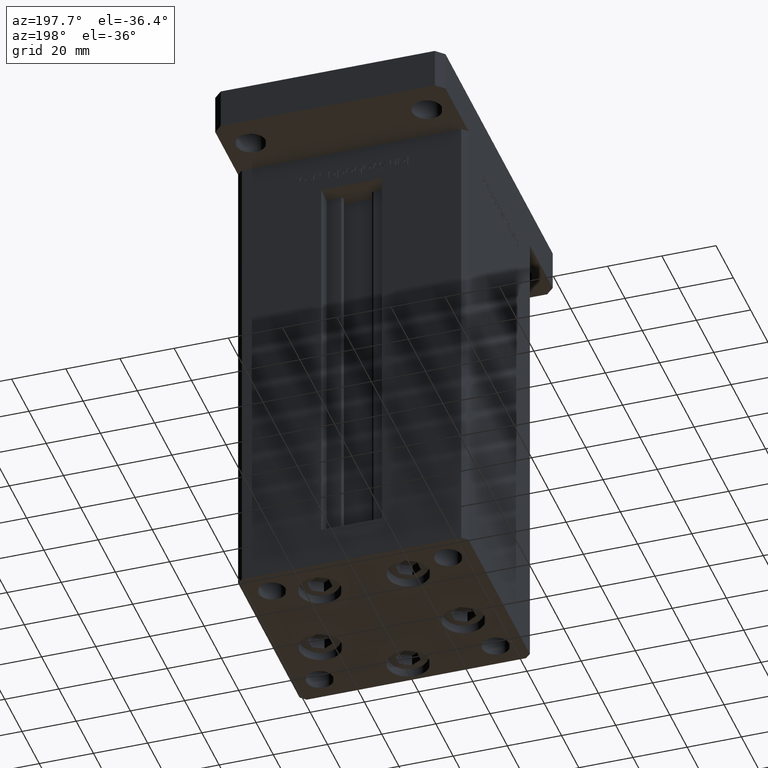
[diagram: clean part render]
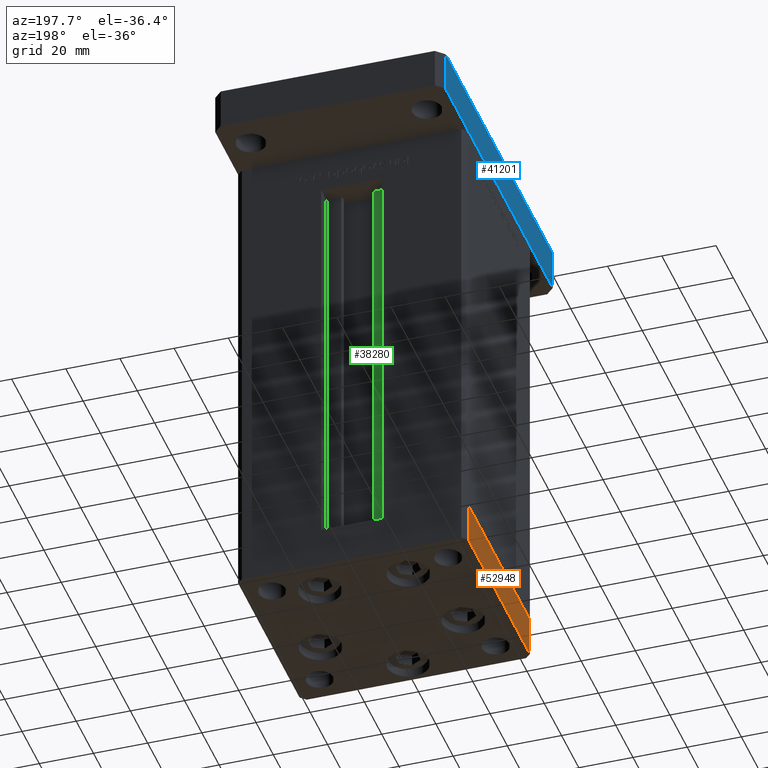
[diagram: same view with three faces highlighted in distinct colors, each labeled with its STEP entity id]
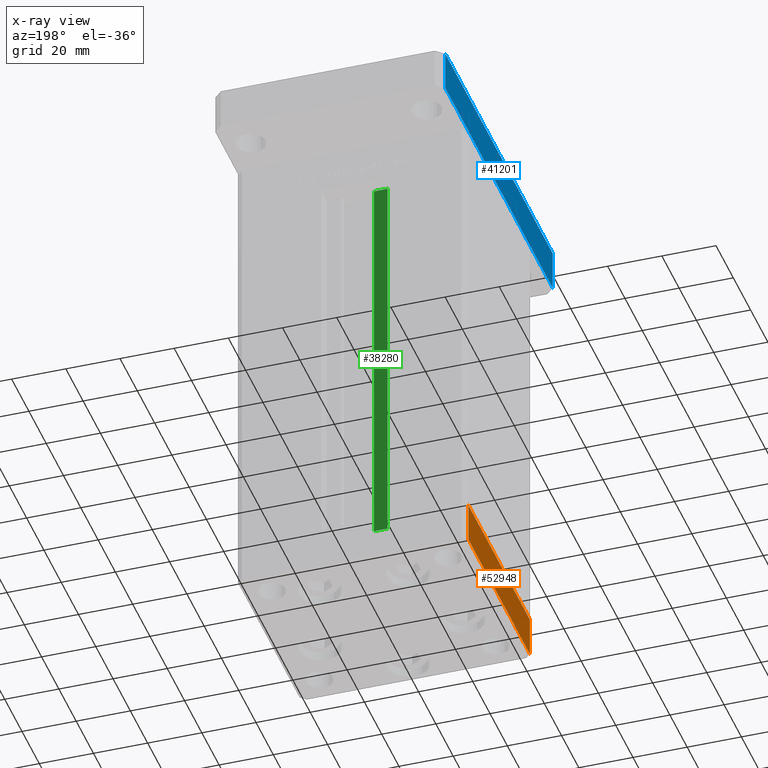
[diagram: x-ray of the same camera — body ghosted, the three highlighted faces saturated]
A machine part, auxiliary view with three faces highlighted in distinct colors.
The next image is the same camera in x-ray (body ghosted, the three faces saturated) — at least one of them is partly hidden behind the body in this view.
Their STEP definitions:

[orange] entity #52948 — the highlighted planar face has unit normal (-1, 0, 0).
#741 = VECTOR ( 'NONE', #9387, 1000.000000000000000 ) ;
#3441 = VERTEX_POINT ( 'NONE', #46771 ) ;
#3985 = AXIS2_PLACEMENT_3D ( 'NONE', #17470, #34008, #45936 ) ;
#4777 = EDGE_CURVE ( 'NONE', #44867, #19533, #8038, .T. ) ;
#5547 = LINE ( 'NONE', #39439, #51664 ) ;
#7518 = ORIENTED_EDGE ( 'NONE', *, *, #31306, .T. ) ;
#8002 = LINE ( 'NONE', #24568, #25892 ) ;
#8038 = LINE ( 'NONE', #41125, #741 ) ;
#9387 = DIRECTION ( 'NONE',  ( -1.172770800660376741E-15, 1.000000000000000000, 0.000000000000000000 ) ) ;
#10040 = EDGE_CURVE ( 'NONE', #33467, #44867, #8002, .T. ) ;
#12840 = PLANE ( 'NONE',  #3985 ) ;
#14798 = ORIENTED_EDGE ( 'NONE', *, *, #49967, .T. ) ;
#16931 = FACE_OUTER_BOUND ( 'NONE', #22324, .T. ) ;
#17470 = CARTESIAN_POINT ( 'NONE',  ( 42.50000000000000711, -35.50000000000000000, -15.00000000000000000 ) ) ;
#19533 = VERTEX_POINT ( 'NONE', #48091 ) ;
#22324 = EDGE_LOOP ( 'NONE', ( #23683, #27690, #7518, #14798 ) ) ;
#23683 = ORIENTED_EDGE ( 'NONE', *, *, #4777, .F. ) ;
#24568 = CARTESIAN_POINT ( 'NONE',  ( 42.50000000000000711, -35.50000000000000000, -15.00000000000000000 ) ) ;
#25892 = VECTOR ( 'NONE', #32967, 1000.000000000000000 ) ;
#27690 = ORIENTED_EDGE ( 'NONE', *, *, #10040, .F. ) ;
#31306 = EDGE_CURVE ( 'NONE', #33467, #3441, #49856, .T. ) ;
#32967 = DIRECTION ( 'NONE',  ( 0.000000000000000000, 0.000000000000000000, 1.000000000000000000 ) ) ;
#33467 = VERTEX_POINT ( 'NONE', #44484 ) ;
#33590 = DIRECTION ( 'NONE',  ( -1.172770800660376741E-15, 1.000000000000000000, 0.000000000000000000 ) ) ;
#34008 = DIRECTION ( 'NONE',  ( 1.000000000000000000, 1.172770800660376741E-15, -0.000000000000000000 ) ) ;
#39439 = CARTESIAN_POINT ( 'NONE',  ( 42.49999999999992895, 35.50000000000000000, -15.00000000000000000 ) ) ;
#41125 = CARTESIAN_POINT ( 'NONE',  ( 42.50000000000000711, -35.50000000000000000, 0.000000000000000000 ) ) ;
#44484 = CARTESIAN_POINT ( 'NONE',  ( 42.50000000000000711, -35.50000000000000000, -15.00000000000000000 ) ) ;
#44867 = VERTEX_POINT ( 'NONE', #49268 ) ;
#45936 = DIRECTION ( 'NONE',  ( -1.172770800660376741E-15, 1.000000000000000000, 0.000000000000000000 ) ) ;
#46598 = CARTESIAN_POINT ( 'NONE',  ( 42.50000000000000711, -35.50000000000000000, -15.00000000000000000 ) ) ;
#46771 = CARTESIAN_POINT ( 'NONE',  ( 42.49999999999992895, 35.50000000000000000, -15.00000000000000000 ) ) ;
#47310 = DIRECTION ( 'NONE',  ( 0.000000000000000000, 0.000000000000000000, 1.000000000000000000 ) ) ;
#48091 = CARTESIAN_POINT ( 'NONE',  ( 42.49999999999992895, 35.50000000000000000, 0.000000000000000000 ) ) ;
#49268 = CARTESIAN_POINT ( 'NONE',  ( 42.50000000000000711, -35.50000000000000000, 0.000000000000000000 ) ) ;
#49856 = LINE ( 'NONE', #46598, #52074 ) ;
#49967 = EDGE_CURVE ( 'NONE', #3441, #19533, #5547, .T. ) ;
#51664 = VECTOR ( 'NONE', #47310, 1000.000000000000000 ) ;
#52074 = VECTOR ( 'NONE', #33590, 1000.000000000000000 ) ;
#52948 = ADVANCED_FACE ( 'NONE', ( #16931 ), #12840, .T. ) ;

[blue] entity #41201 — the highlighted planar face has unit normal (1, 0, 0).
#212 = CARTESIAN_POINT ( 'NONE',  ( -42.50000000000002132, 62.00000000000000711, 15.00000000000000000 ) ) ;
#5025 = EDGE_CURVE ( 'NONE', #47644, #29393, #35678, .T. ) ;
#6117 = EDGE_CURVE ( 'NONE', #18788, #36698, #46958, .T. ) ;
#7469 = ORIENTED_EDGE ( 'NONE', *, *, #6117, .T. ) ;
#11046 = FACE_OUTER_BOUND ( 'NONE', #34061, .T. ) ;
#11125 = VECTOR ( 'NONE', #28348, 1000.000000000000000 ) ;
#11527 = VECTOR ( 'NONE', #19305, 1000.000000000000000 ) ;
#12273 = CARTESIAN_POINT ( 'NONE',  ( -42.49999999999999289, -62.00000000000001421, 15.00000000000000000 ) ) ;
#14971 = LINE ( 'NONE', #39911, #11527 ) ;
#18117 = DIRECTION ( 'NONE',  ( -2.238352872228137677E-16, 1.000000000000000000, 0.000000000000000000 ) ) ;
#18788 = VERTEX_POINT ( 'NONE', #45472 ) ;
#19305 = DIRECTION ( 'NONE',  ( -0.000000000000000000, -0.000000000000000000, -1.000000000000000000 ) ) ;
#22412 = VECTOR ( 'NONE', #30420, 1000.000000000000000 ) ;
#22943 = ORIENTED_EDGE ( 'NONE', *, *, #36679, .F. ) ;
#23007 = CARTESIAN_POINT ( 'NONE',  ( -42.50000000000002132, 62.00000000000000711, 15.00000000000000000 ) ) ;
#23279 = PLANE ( 'NONE',  #43735 ) ;
#28348 = DIRECTION ( 'NONE',  ( 2.238352872228137677E-16, -1.000000000000000000, 0.000000000000000000 ) ) ;
#29393 = VERTEX_POINT ( 'NONE', #12273 ) ;
#30420 = DIRECTION ( 'NONE',  ( 2.238352872228137677E-16, -1.000000000000000000, 0.000000000000000000 ) ) ;
#34061 = EDGE_LOOP ( 'NONE', ( #7469, #22943, #47456, #48614 ) ) ;
#34184 = EDGE_CURVE ( 'NONE', #47644, #18788, #38188, .T. ) ;
#35678 = LINE ( 'NONE', #44873, #11125 ) ;
#36679 = EDGE_CURVE ( 'NONE', #29393, #36698, #14971, .T. ) ;
#36698 = VERTEX_POINT ( 'NONE', #48844 ) ;
#38188 = LINE ( 'NONE', #212, #47852 ) ;
#38722 = DIRECTION ( 'NONE',  ( 1.000000000000000000, 2.238352872228137677E-16, -0.000000000000000000 ) ) ;
#39911 = CARTESIAN_POINT ( 'NONE',  ( -42.49999999999999289, -62.00000000000001421, 15.00000000000000000 ) ) ;
#41201 = ADVANCED_FACE ( 'NONE', ( #11046 ), #23279, .F. ) ;
#41440 = DIRECTION ( 'NONE',  ( -0.000000000000000000, -0.000000000000000000, -1.000000000000000000 ) ) ;
#43735 = AXIS2_PLACEMENT_3D ( 'NONE', #23007, #38722, #18117 ) ;
#44873 = CARTESIAN_POINT ( 'NONE',  ( -42.50000000000002132, 62.00000000000000711, 15.00000000000000000 ) ) ;
#45472 = CARTESIAN_POINT ( 'NONE',  ( -42.50000000000002132, 62.00000000000000711, 0.000000000000000000 ) ) ;
#46958 = LINE ( 'NONE', #47763, #22412 ) ;
#47289 = CARTESIAN_POINT ( 'NONE',  ( -42.50000000000002132, 62.00000000000000711, 15.00000000000000000 ) ) ;
#47456 = ORIENTED_EDGE ( 'NONE', *, *, #5025, .F. ) ;
#47644 = VERTEX_POINT ( 'NONE', #47289 ) ;
#47763 = CARTESIAN_POINT ( 'NONE',  ( -42.50000000000002132, 62.00000000000000711, 0.000000000000000000 ) ) ;
#47852 = VECTOR ( 'NONE', #41440, 1000.000000000000000 ) ;
#48614 = ORIENTED_EDGE ( 'NONE', *, *, #34184, .T. ) ;
#48844 = CARTESIAN_POINT ( 'NONE',  ( -42.49999999999999289, -62.00000000000001421, 0.000000000000000000 ) ) ;

[green] entity #38280 — the highlighted planar face has unit normal (0, -1, 0).
#71 = EDGE_CURVE ( 'NONE', #47621, #40026, #42088, .T. ) ;
#369 = CARTESIAN_POINT ( 'NONE',  ( -6.183333333333999704, 30.99999999999999289, 0.000000000000000000 ) ) ;
#4227 = EDGE_CURVE ( 'NONE', #7308, #47621, #5522, .T. ) ;
#4399 = DIRECTION ( 'NONE',  ( -1.000000000000000000, 0.000000000000000000, 0.000000000000000000 ) ) ;
#5522 = LINE ( 'NONE', #22087, #24955 ) ;
#6539 = DIRECTION ( 'NONE',  ( -0.000000000000000000, -0.000000000000000000, 1.000000000000000000 ) ) ;
#7308 = VERTEX_POINT ( 'NONE', #369 ) ;
#7763 = CARTESIAN_POINT ( 'NONE',  ( -6.183333333333999704, 30.99999999999999289, 0.000000000000000000 ) ) ;
#8288 = DIRECTION ( 'NONE',  ( 0.000000000000000000, -1.000000000000000000, -0.000000000000000000 ) ) ;
#12356 = FACE_OUTER_BOUND ( 'NONE', #49987, .T. ) ;
#14093 = CARTESIAN_POINT ( 'NONE',  ( -11.25000000000000000, 30.99999999999999289, 0.000000000000000000 ) ) ;
#15554 = CARTESIAN_POINT ( 'NONE',  ( -6.183333333333999704, 30.99999999999999289, 0.000000000000000000 ) ) ;
#16944 = VECTOR ( 'NONE', #52693, 1000.000000000000000 ) ;
#21983 = CARTESIAN_POINT ( 'NONE',  ( -11.25000000000000000, 30.99999999999999289, 148.5000000000000000 ) ) ;
#22087 = CARTESIAN_POINT ( 'NONE',  ( -6.183333333333999704, 30.99999999999999289, 0.000000000000000000 ) ) ;
#23967 = VECTOR ( 'NONE', #4399, 1000.000000000000000 ) ;
#24955 = VECTOR ( 'NONE', #39148, 1000.000000000000000 ) ;
#25028 = CARTESIAN_POINT ( 'NONE',  ( 0.000000000000000000, 30.99999999999999289, 148.5000000000000000 ) ) ;
#26594 = EDGE_CURVE ( 'NONE', #42687, #40026, #31239, .T. ) ;
#31239 = LINE ( 'NONE', #51308, #40798 ) ;
#31546 = AXIS2_PLACEMENT_3D ( 'NONE', #7763, #8288, #45189 ) ;
#38280 = ADVANCED_FACE ( 'NONE', ( #12356 ), #48994, .F. ) ;
#39148 = DIRECTION ( 'NONE',  ( -0.000000000000000000, -0.000000000000000000, 1.000000000000000000 ) ) ;
#40026 = VERTEX_POINT ( 'NONE', #21983 ) ;
#40798 = VECTOR ( 'NONE', #6539, 1000.000000000000000 ) ;
#42088 = LINE ( 'NONE', #25028, #23967 ) ;
#42687 = VERTEX_POINT ( 'NONE', #14093 ) ;
#45066 = CARTESIAN_POINT ( 'NONE',  ( -6.183333333333999704, 30.99999999999999289, 148.5000000000000000 ) ) ;
#45189 = DIRECTION ( 'NONE',  ( 0.000000000000000000, 0.000000000000000000, -1.000000000000000000 ) ) ;
#47621 = VERTEX_POINT ( 'NONE', #45066 ) ;
#47780 = EDGE_CURVE ( 'NONE', #42687, #7308, #52169, .T. ) ;
#47937 = ORIENTED_EDGE ( 'NONE', *, *, #4227, .F. ) ;
#48994 = PLANE ( 'NONE',  #31546 ) ;
#49694 = ORIENTED_EDGE ( 'NONE', *, *, #47780, .F. ) ;
#49987 = EDGE_LOOP ( 'NONE', ( #47937, #49694, #50836, #50080 ) ) ;
#50080 = ORIENTED_EDGE ( 'NONE', *, *, #71, .F. ) ;
#50836 = ORIENTED_EDGE ( 'NONE', *, *, #26594, .T. ) ;
#51308 = CARTESIAN_POINT ( 'NONE',  ( -11.25000000000000000, 30.99999999999999289, 0.000000000000000000 ) ) ;
#52169 = LINE ( 'NONE', #15554, #16944 ) ;
#52693 = DIRECTION ( 'NONE',  ( 1.000000000000000000, -0.000000000000000000, -0.000000000000000000 ) ) ;